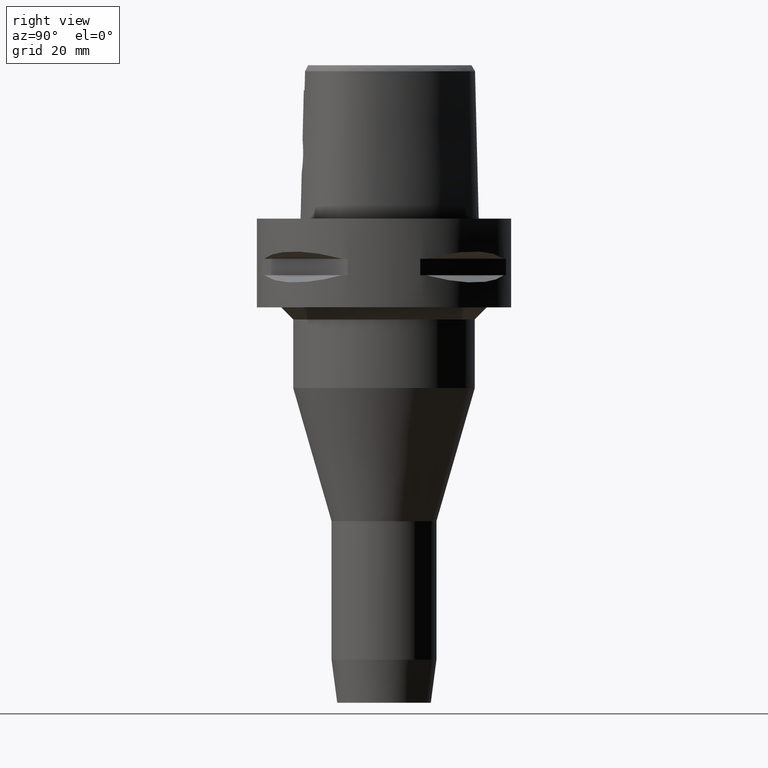
[diagram: clean part render]
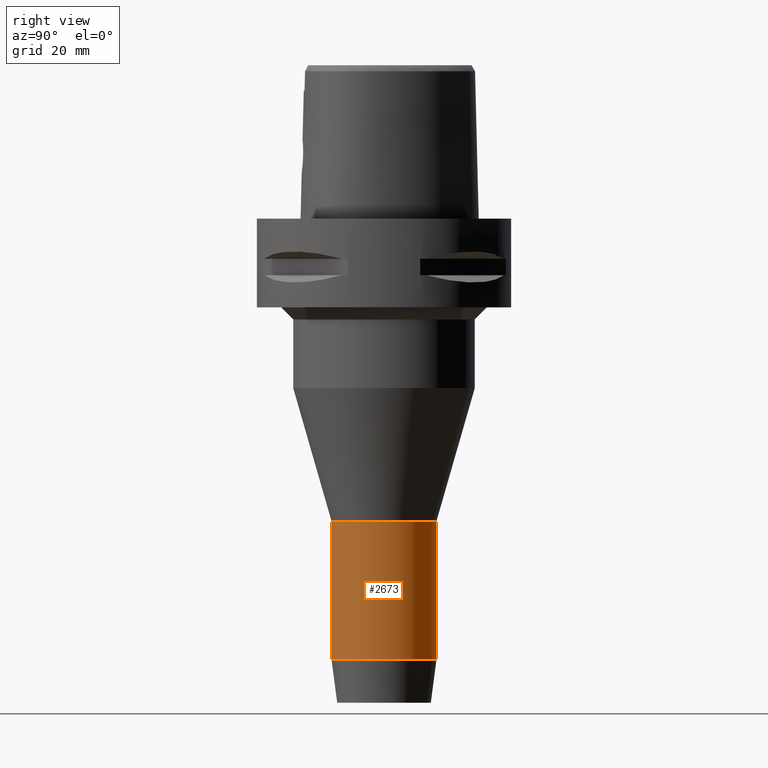
[diagram: same view with one face highlighted and labeled with its STEP entity id]
A machine part, right view. The second image highlights one B-rep face of the part: STEP entity #2673.
In plain terms, the highlighted cylindrical surface (partial cylindrical patch) has radius 13 mm, axis along (0, 0, -1).
Its self-contained STEP definition (entity closure, byte-faithful):
#648=CARTESIAN_POINT('',(0.E0,0.E0,-7.5E1));
#649=DIRECTION('',(0.E0,0.E0,-1.E0));
#650=DIRECTION('',(0.E0,1.E0,0.E0));
#651=AXIS2_PLACEMENT_3D('',#648,#649,#650);
#664=DIRECTION('',(0.E0,1.177492961277E-13,-1.E0));
#665=VECTOR('',#664,3.433556122570E1);
#666=CARTESIAN_POINT('',(0.E0,1.3E1,-7.5E1));
#667=LINE('',#666,#665);
#671=DIRECTION('',(0.E0,-1.177492961277E-13,-1.E0));
#672=VECTOR('',#671,3.433556122570E1);
#673=CARTESIAN_POINT('',(0.E0,-1.3E1,-7.5E1));
#674=LINE('',#673,#672);
#700=CARTESIAN_POINT('',(0.E0,0.E0,-1.093355612257E2));
#701=DIRECTION('',(0.E0,0.E0,1.E0));
#702=DIRECTION('',(0.E0,-1.E0,0.E0));
#703=AXIS2_PLACEMENT_3D('',#700,#701,#702);
#1680=CARTESIAN_POINT('',(0.E0,1.3E1,-7.5E1));
#1681=VERTEX_POINT('',#1680);
#1682=CARTESIAN_POINT('',(0.E0,-1.3E1,-7.5E1));
#1683=VERTEX_POINT('',#1682);
#1684=CARTESIAN_POINT('',(0.E0,1.3E1,-1.093355612257E2));
#1685=VERTEX_POINT('',#1684);
#1686=CARTESIAN_POINT('',(0.E0,-1.300000000001E1,-1.093355612257E2));
#1687=VERTEX_POINT('',#1686);
#2659=CARTESIAN_POINT('',(0.E0,1.298125607096E-14,6.E0));
#2660=DIRECTION('',(0.E0,0.E0,-1.E0));
#2661=DIRECTION('',(0.E0,-1.E0,0.E0));
#2662=AXIS2_PLACEMENT_3D('',#2659,#2660,#2661);
#2663=CYLINDRICAL_SURFACE('',#2662,1.3E1);
#2665=ORIENTED_EDGE('',*,*,#2664,.T.);
#2667=ORIENTED_EDGE('',*,*,#2666,.F.);
#2669=ORIENTED_EDGE('',*,*,#2668,.F.);
#2670=ORIENTED_EDGE('',*,*,#2652,.F.);
#2671=EDGE_LOOP('',(#2665,#2667,#2669,#2670));
#2672=FACE_OUTER_BOUND('',#2671,.F.);
#652=CIRCLE('',#651,1.3E1);
#704=CIRCLE('',#703,1.300000000001E1);
#2652=EDGE_CURVE('',#1681,#1683,#652,.T.);
#2664=EDGE_CURVE('',#1681,#1685,#667,.T.);
#2666=EDGE_CURVE('',#1687,#1685,#704,.T.);
#2668=EDGE_CURVE('',#1683,#1687,#674,.T.);
#2673=ADVANCED_FACE('',(#2672),#2663,.T.);